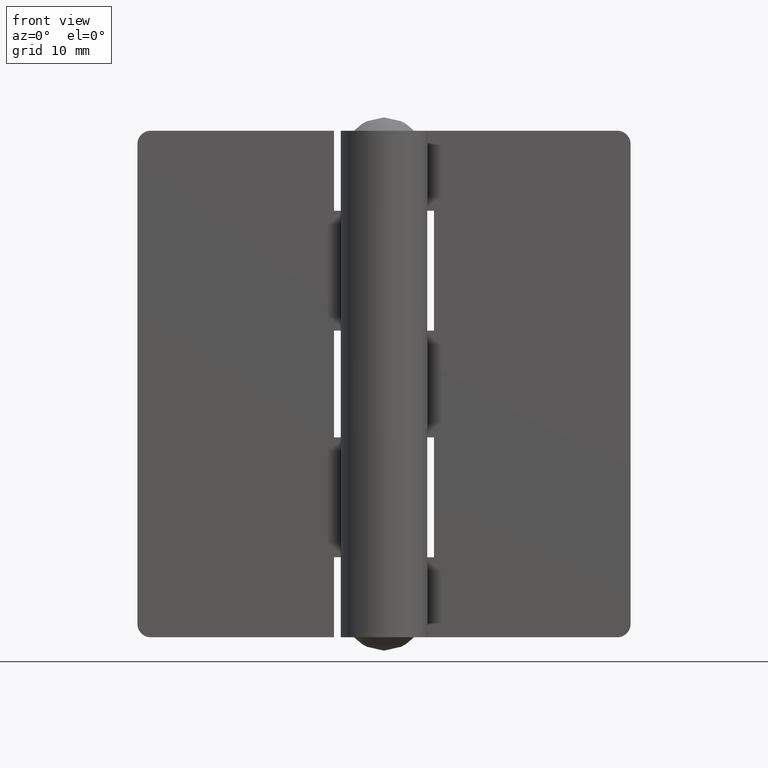
[diagram: clean part render]
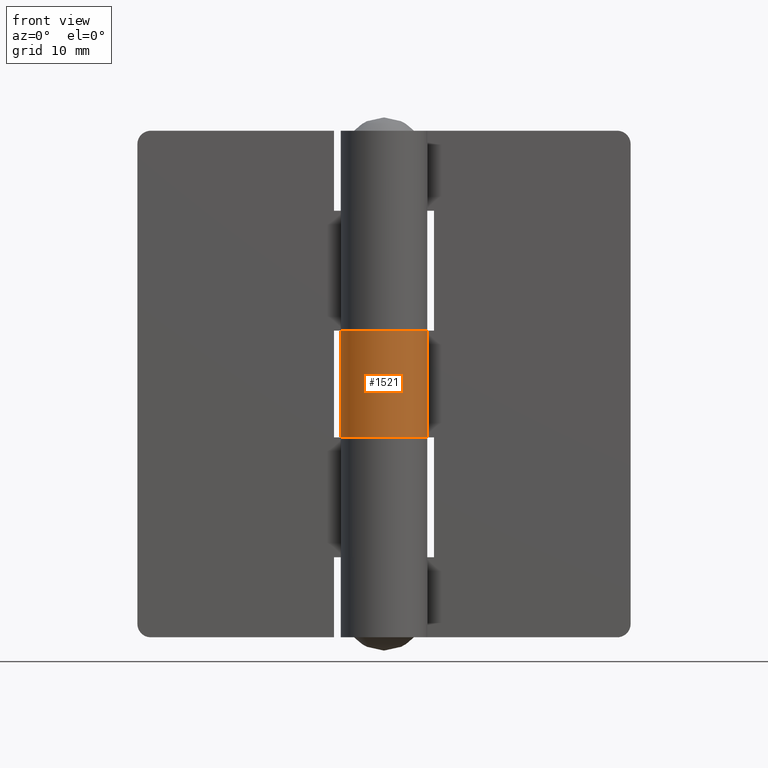
[diagram: same view with one face highlighted and labeled with its STEP entity id]
A machine part, front view. The second image highlights one B-rep face of the part: STEP entity #1521.
In plain terms, the highlighted face is a freeform B-spline surface patch.
Its self-contained STEP definition (entity closure, byte-faithful):
#1132=CARTESIAN_POINT('',(5.508856505664310,3.450000000000000,30.0));
#1133=VERTEX_POINT('',#1132);
#1139=CARTESIAN_POINT('',(0.0,6.500000000000000,30.0));
#1140=VERTEX_POINT('',#1139);
#1141=CARTESIAN_POINT('',(5.508856505664310,3.450000000000000,30.0));
#1142=CARTESIAN_POINT('',(8.180823551310168,-0.816516823862848,29.999999999999993));
#1143=CARTESIAN_POINT('',(4.718296452593100,-4.470758166737199,30.0));
#1144=CARTESIAN_POINT('',(1.255769353876034,-8.124999509611548,29.999999999999993));
#1145=CARTESIAN_POINT('',(-3.148412298286228,-5.686607072763162,30.0));
#1146=CARTESIAN_POINT('',(-7.552593950448501,-3.248214635914773,29.999999999999993));
#1147=CARTESIAN_POINT('',(-6.293367380542810,1.625892682042617,30.0));
#1148=CARTESIAN_POINT('',(-5.034140810637118,6.500000000000000,29.999999999999993));
#1149=CARTESIAN_POINT('',(0.0,6.500000000000000,30.0));
#1157=(BOUNDED_CURVE()B_SPLINE_CURVE(2,(#1141,#1142,#1143,#1144,#1145,#1146,#1147,#1148,#1149),.UNSPECIFIED.,.F.,.U.)B_SPLINE_CURVE_WITH_KNOTS((3,2,2,2,3),(0.0,0.250000000000000,0.500000000000000,0.750000000000000,1.0),.UNSPECIFIED.)CURVE()GEOMETRIC_REPRESENTATION_ITEM()RATIONAL_B_SPLINE_CURVE((1.0,0.790612843210526,1.0,0.790612843210526,1.0,0.790612843210526,1.0,0.790612843210526,1.0))REPRESENTATION_ITEM(''));
#1158=EDGE_CURVE('',#1133,#1140,#1157,.T.);
#1288=CARTESIAN_POINT('',(0.0,6.500000000000000,46.0));
#1289=VERTEX_POINT('',#1288);
#1295=CARTESIAN_POINT('',(5.508856505664310,3.450000000000000,46.0));
#1296=VERTEX_POINT('',#1295);
#1297=CARTESIAN_POINT('',(0.0,6.500000000000000,46.0));
#1298=CARTESIAN_POINT('',(-5.034140810637116,6.500000000000000,46.0));
#1299=CARTESIAN_POINT('',(-6.293367380542809,1.625892682042621,46.0));
#1300=CARTESIAN_POINT('',(-7.552593950448502,-3.248214635914765,46.0));
#1301=CARTESIAN_POINT('',(-3.148412298286237,-5.686607072763158,46.0));
#1302=CARTESIAN_POINT('',(1.255769353876027,-8.124999509611552,46.0));
#1303=CARTESIAN_POINT('',(4.718296452593097,-4.470758166737202,46.0));
#1304=CARTESIAN_POINT('',(8.180823551310164,-0.816516823862857,46.0));
#1305=CARTESIAN_POINT('',(5.508856505664316,3.449999999999993,46.0));
#1313=(BOUNDED_CURVE()B_SPLINE_CURVE(2,(#1297,#1298,#1299,#1300,#1301,#1302,#1303,#1304,#1305),.UNSPECIFIED.,.F.,.U.)B_SPLINE_CURVE_WITH_KNOTS((3,2,2,2,3),(0.0,0.250000000000000,0.500000000000000,0.750000000000000,1.0),.UNSPECIFIED.)CURVE()GEOMETRIC_REPRESENTATION_ITEM()RATIONAL_B_SPLINE_CURVE((1.0,0.790612843210526,1.0,0.790612843210526,1.0,0.790612843210526,1.0,0.790612843210526,1.0))REPRESENTATION_ITEM(''));
#1314=EDGE_CURVE('',#1289,#1296,#1313,.T.);
#1485=CARTESIAN_POINT('',(0.277015332386252,6.494094433069394,46.400000000000013));
#1486=CARTESIAN_POINT('',(0.277015332386252,6.494094433069394,29.589999999999989));
#1487=CARTESIAN_POINT('',(-7.887180295432386,6.842350435321217,46.400000000000006));
#1488=CARTESIAN_POINT('',(-7.887180295432386,6.842350435321217,29.589999999999996));
#1489=CARTESIAN_POINT('',(-6.389966104560965,-1.190937942363890,46.400000000000013));
#1490=CARTESIAN_POINT('',(-6.389966104560965,-1.190937942363890,29.589999999999989));
#1491=CARTESIAN_POINT('',(-4.892751913689542,-9.224226320048999,46.400000000000006));
#1492=CARTESIAN_POINT('',(-4.892751913689542,-9.224226320048999,29.589999999999996));
#1493=CARTESIAN_POINT('',(2.597843892498850,-5.958288941483653,46.400000000000013));
#1494=CARTESIAN_POINT('',(2.597843892498850,-5.958288941483653,29.589999999999989));
#1495=CARTESIAN_POINT('',(10.088439698687242,-2.692351562918307,46.400000000000006));
#1496=CARTESIAN_POINT('',(10.088439698687242,-2.692351562918307,29.589999999999996));
#1497=CARTESIAN_POINT('',(5.221190659284190,3.871584701308174,46.400000000000013));
#1498=CARTESIAN_POINT('',(5.221190659284190,3.871584701308174,29.589999999999989));
#1506=(BOUNDED_SURFACE()B_SPLINE_SURFACE(1,2,((#1485,#1487,#1489,#1491,#1493,#1495,#1497),(#1486,#1488,#1490,#1492,#1494,#1496,#1498)),.UNSPECIFIED.,.F.,.F.,.U.)B_SPLINE_SURFACE_WITH_KNOTS((2,2),(3,2,2,3),(0.0,16.810000000000009),(0.0,12.540911261256831,25.081822522513669,37.622733783770499),.UNSPECIFIED.)GEOMETRIC_REPRESENTATION_ITEM()RATIONAL_B_SPLINE_SURFACE(((1.0,0.622514636637620,1.0,0.622514636637620,1.0,0.622514636637620,1.0),(1.0,0.622514636637620,1.0,0.622514636637620,1.0,0.622514636637620,1.0)))REPRESENTATION_ITEM('')SURFACE());
#1507=CARTESIAN_POINT('',(0.0,6.500000000000000,46.0));
#1508=CARTESIAN_POINT('',(0.0,6.500000000000000,30.0));
#1509=QUASI_UNIFORM_CURVE('',1,(#1507,#1508),.UNSPECIFIED.,.F.,.U.);
#1510=EDGE_CURVE('',#1289,#1140,#1509,.T.);
#1511=ORIENTED_EDGE('',*,*,#1510,.T.);
#1512=ORIENTED_EDGE('',*,*,#1158,.F.);
#1513=CARTESIAN_POINT('',(5.508856505664310,3.450000000000000,46.0));
#1514=CARTESIAN_POINT('',(5.508856505664310,3.450000000000000,30.0));
#1515=QUASI_UNIFORM_CURVE('',1,(#1513,#1514),.UNSPECIFIED.,.F.,.U.);
#1516=EDGE_CURVE('',#1296,#1133,#1515,.T.);
#1517=ORIENTED_EDGE('',*,*,#1516,.F.);
#1518=ORIENTED_EDGE('',*,*,#1314,.F.);
#1519=EDGE_LOOP('',(#1511,#1512,#1517,#1518));
#1520=FACE_OUTER_BOUND('',#1519,.T.);
#1521=ADVANCED_FACE('',(#1520),#1506,.T.);